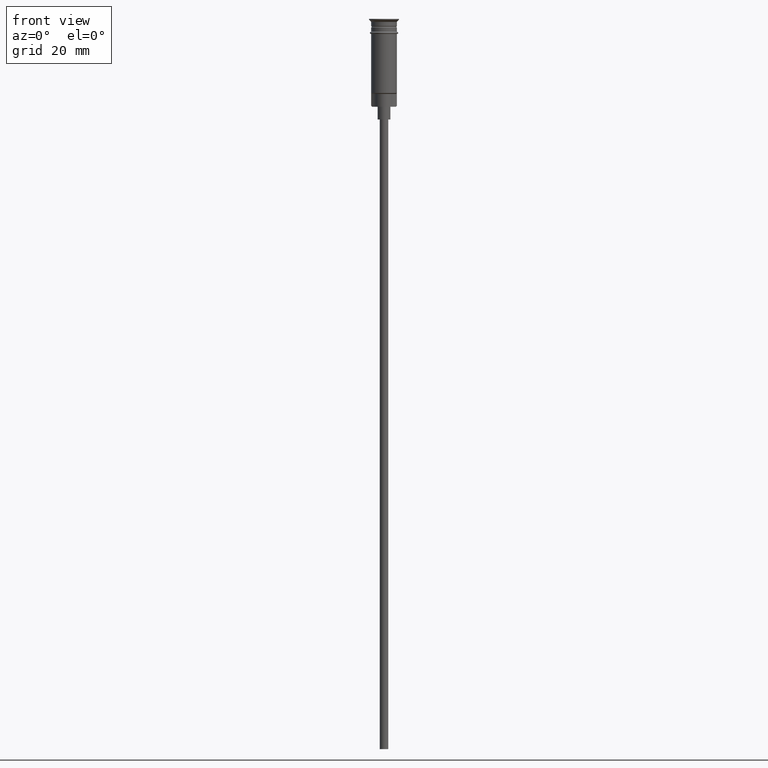
[diagram: clean part render]
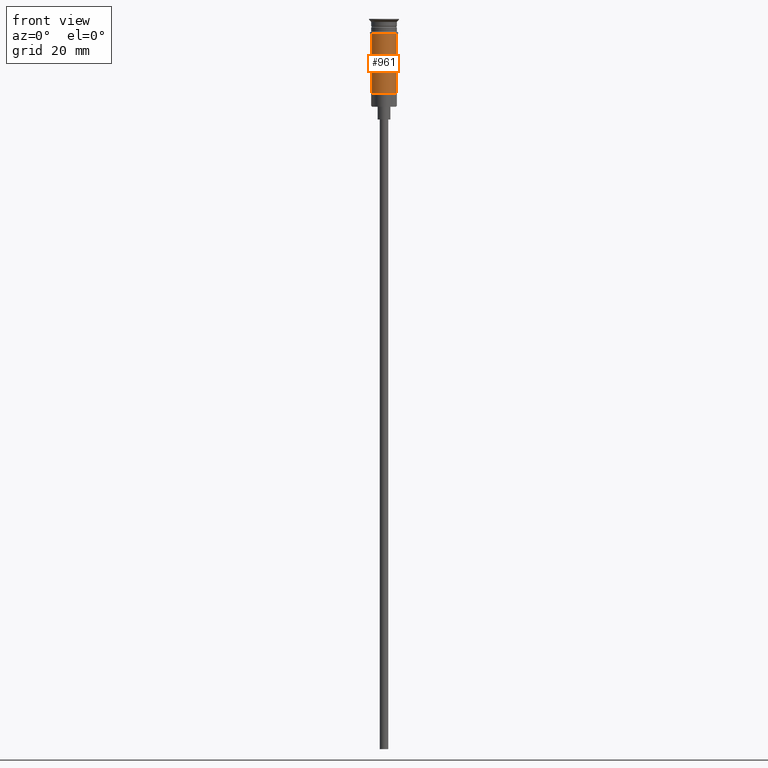
[diagram: same view with one face highlighted and labeled with its STEP entity id]
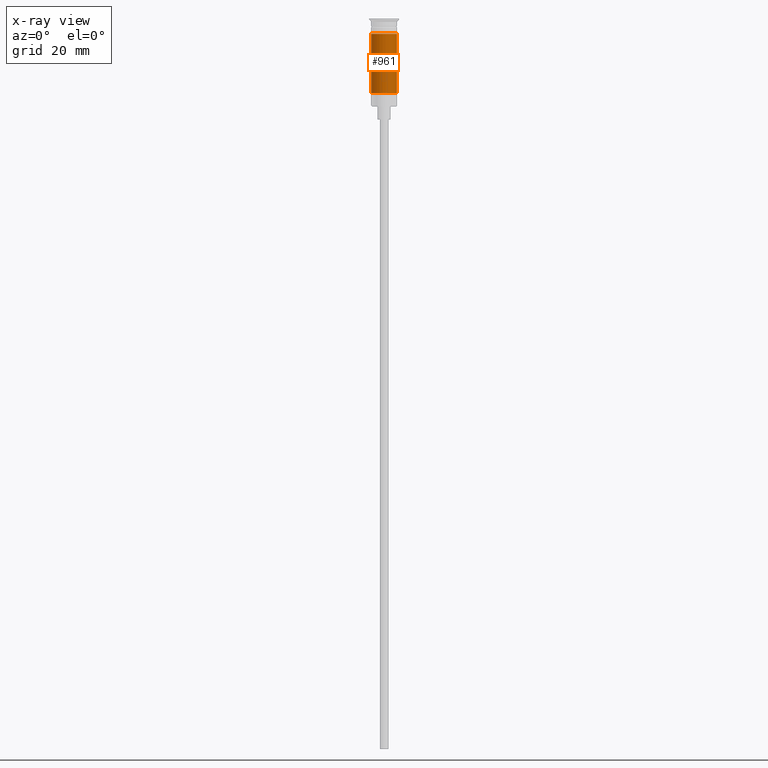
[diagram: x-ray of the same camera — body ghosted, the highlighted face saturated]
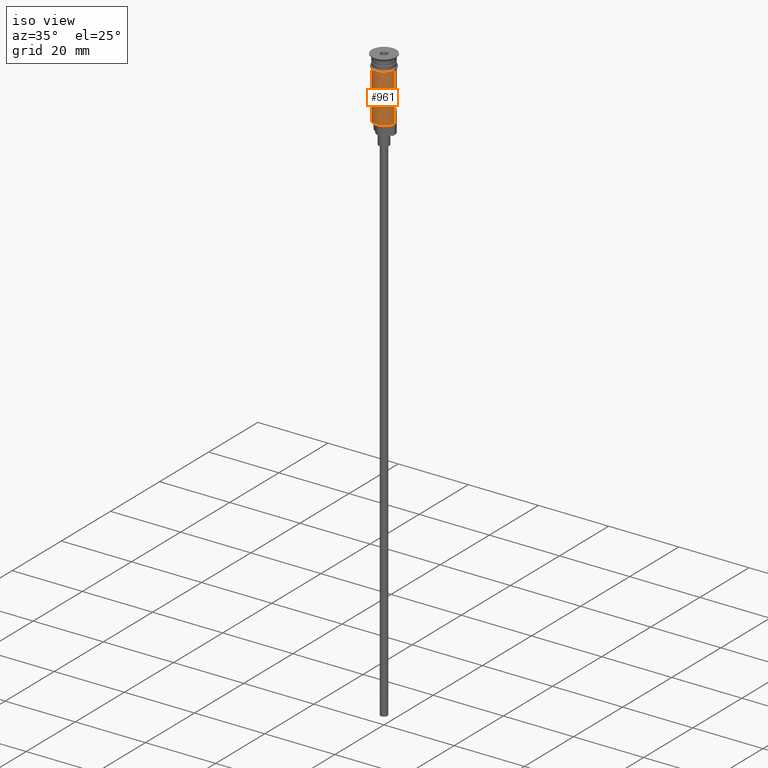
[diagram: same view with one face highlighted and labeled with its STEP entity id]
A machine part, front view. The second image highlights one B-rep face of the part: STEP entity #961.
The next image is the same camera in x-ray: the body ghosted, the highlighted face saturated — about 0% of this face is hidden behind the body in this view.
A second angle (iso view) of the same face is appended — the face is thin or edge-on in the first view.
In plain terms, the highlighted cylindrical surface (edge-blend (fillet) strip) has radius 3 mm, axis along (-0, -0, 1).
Its self-contained STEP definition (entity closure, byte-faithful):
#103 = VERTEX_POINT ( 'NONE', #1290 ) ;
#141 = LINE ( 'NONE', #640, #157 ) ;
#157 = VECTOR ( 'NONE', #1520, 1000.000000000000000 ) ;
#233 = CARTESIAN_POINT ( 'NONE',  ( -2.999999999999996891, 3.673940397442055924E-16, 0.000000000000000000 ) ) ;
#252 = VERTEX_POINT ( 'NONE', #1547 ) ;
#316 = FACE_OUTER_BOUND ( 'NONE', #325, .T. ) ;
#325 = EDGE_LOOP ( 'NONE', ( #1229, #644, #1317, #1214 ) ) ;
#326 = VERTEX_POINT ( 'NONE', #1182 ) ;
#411 = EDGE_CURVE ( 'NONE', #252, #894, #546, .T. ) ;
#416 = AXIS2_PLACEMENT_3D ( 'NONE', #491, #730, #619 ) ;
#448 = CARTESIAN_POINT ( 'NONE',  ( 0.000000000000000000, 0.000000000000000000, 0.000000000000000000 ) ) ;
#490 = AXIS2_PLACEMENT_3D ( 'NONE', #1396, #797, #1282 ) ;
#491 = CARTESIAN_POINT ( 'NONE',  ( 0.000000000000000000, 0.000000000000000000, -3.499999999999998668 ) ) ;
#496 = LINE ( 'NONE', #233, #704 ) ;
#546 = CIRCLE ( 'NONE', #490, 2.999999999999996891 ) ;
#580 = DIRECTION ( 'NONE',  ( -0.000000000000000000, -0.000000000000000000, 1.000000000000000000 ) ) ;
#609 = DIRECTION ( 'NONE',  ( -0.000000000000000000, -0.000000000000000000, 1.000000000000000000 ) ) ;
#619 = DIRECTION ( 'NONE',  ( 1.000000000000000000, 0.000000000000000000, 0.000000000000000000 ) ) ;
#640 = CARTESIAN_POINT ( 'NONE',  ( 2.999999999999996891, 0.000000000000000000, 0.000000000000000000 ) ) ;
#644 = ORIENTED_EDGE ( 'NONE', *, *, #411, .T. ) ;
#704 = VECTOR ( 'NONE', #609, 1000.000000000000000 ) ;
#730 = DIRECTION ( 'NONE',  ( -0.000000000000000000, -0.000000000000000000, 1.000000000000000000 ) ) ;
#739 = CIRCLE ( 'NONE', #416, 2.999999999999998668 ) ;
#767 = EDGE_CURVE ( 'NONE', #894, #326, #141, .T. ) ;
#797 = DIRECTION ( 'NONE',  ( -0.000000000000000000, -0.000000000000000000, 1.000000000000000000 ) ) ;
#814 = AXIS2_PLACEMENT_3D ( 'NONE', #448, #580, #1077 ) ;
#894 = VERTEX_POINT ( 'NONE', #1151 ) ;
#961 = ADVANCED_FACE ( 'NONE', ( #316 ), #1065, .T. ) ;
#1065 = CYLINDRICAL_SURFACE ( 'NONE', #814, 2.999999999999996891 ) ;
#1077 = DIRECTION ( 'NONE',  ( 1.000000000000000000, 0.000000000000000000, 0.000000000000000000 ) ) ;
#1151 = CARTESIAN_POINT ( 'NONE',  ( 2.999999999999996891, 3.673940397442055924E-16, -17.30000000000000782 ) ) ;
#1182 = CARTESIAN_POINT ( 'NONE',  ( 2.999999999999998668, 0.000000000000000000, -3.499999999999998668 ) ) ;
#1214 = ORIENTED_EDGE ( 'NONE', *, *, #1370, .F. ) ;
#1229 = ORIENTED_EDGE ( 'NONE', *, *, #1263, .F. ) ;
#1263 = EDGE_CURVE ( 'NONE', #252, #103, #496, .T. ) ;
#1282 = DIRECTION ( 'NONE',  ( -1.000000000000000000, 0.000000000000000000, 0.000000000000000000 ) ) ;
#1290 = CARTESIAN_POINT ( 'NONE',  ( -2.999999999999999112, 3.673940397442058389E-16, -3.499999999999998668 ) ) ;
#1317 = ORIENTED_EDGE ( 'NONE', *, *, #767, .T. ) ;
#1370 = EDGE_CURVE ( 'NONE', #103, #326, #739, .T. ) ;
#1396 = CARTESIAN_POINT ( 'NONE',  ( 0.000000000000000000, 0.000000000000000000, -17.30000000000000782 ) ) ;
#1520 = DIRECTION ( 'NONE',  ( -0.000000000000000000, -0.000000000000000000, 1.000000000000000000 ) ) ;
#1547 = CARTESIAN_POINT ( 'NONE',  ( -2.999999999999995115, 0.000000000000000000, -17.30000000000000782 ) ) ;